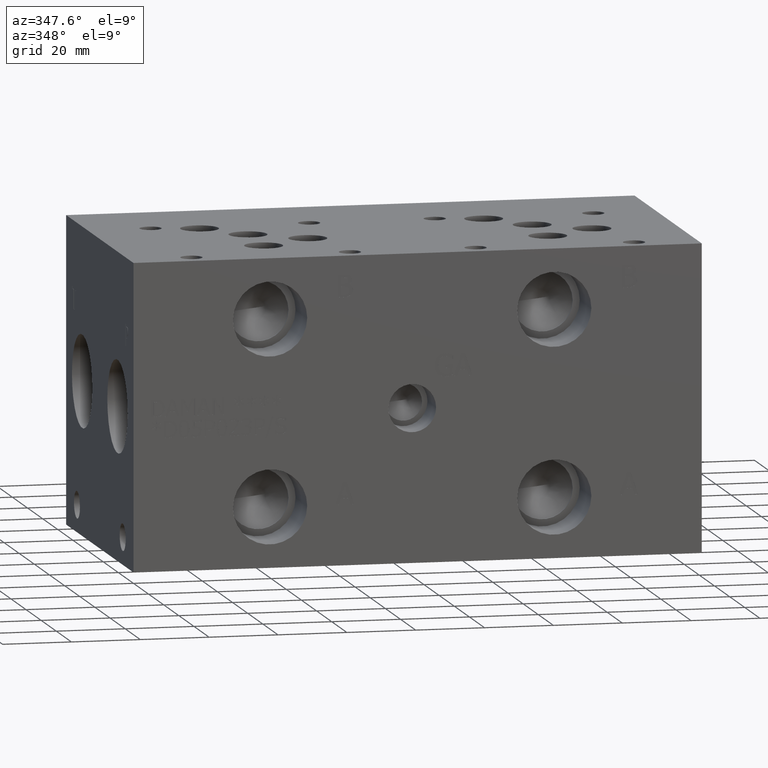
[diagram: clean part render]
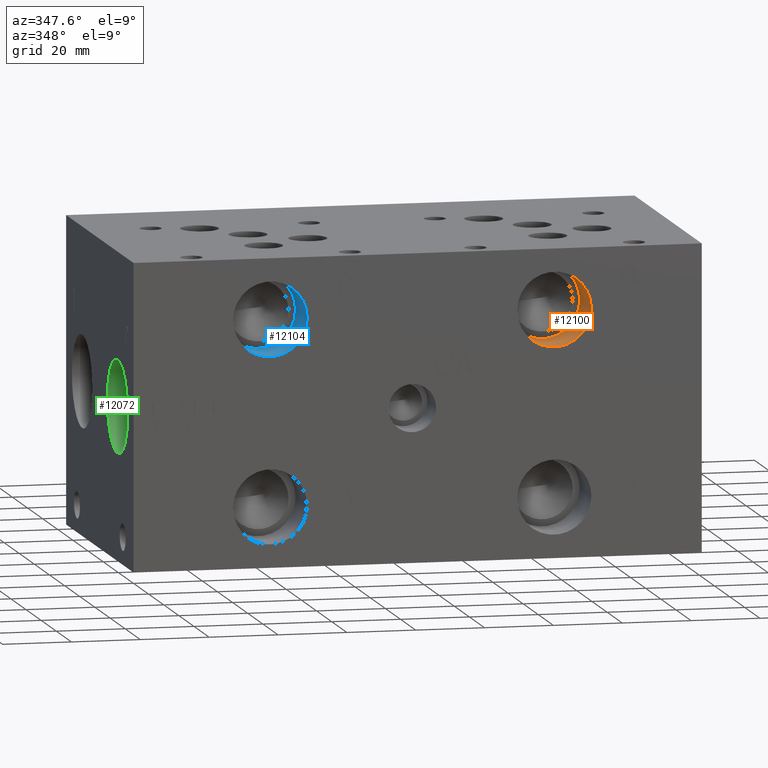
[diagram: same view with three faces highlighted in distinct colors, each labeled with its STEP entity id]
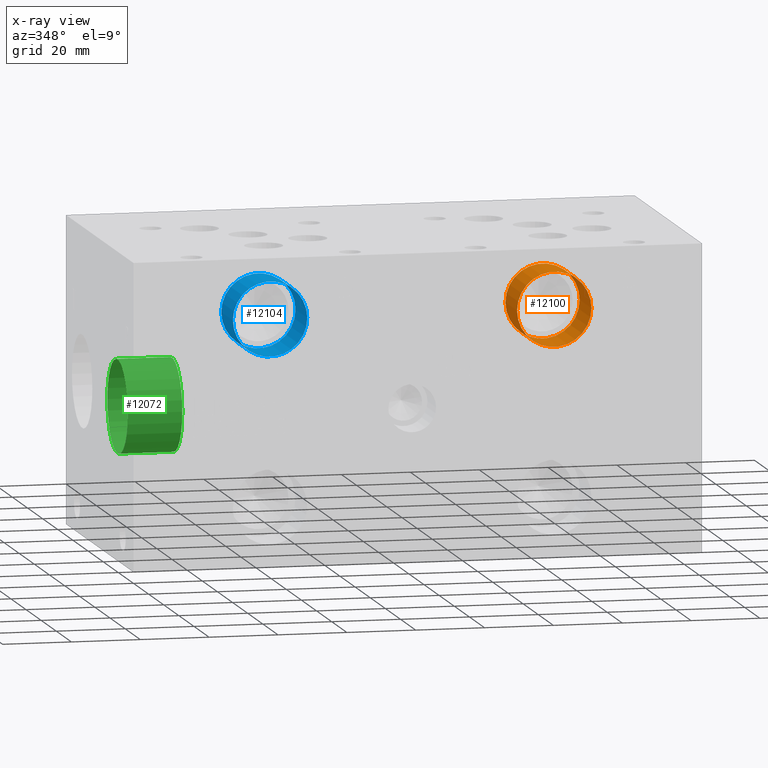
[diagram: x-ray of the same camera — body ghosted, the three highlighted faces saturated]
A machine part, auxiliary view with three faces highlighted in distinct colors.
The next image is the same camera in x-ray (body ghosted, the three faces saturated) — at least one of them is partly hidden behind the body in this view.
Their STEP definitions:

[orange] entity #12100 — the highlighted cylindrical surface (bore or boss wall) has radius 10.795 mm, axis along (0, -1, 0).
#70=CYLINDRICAL_SURFACE('',#12663,10.795);
#108=CIRCLE('',#12209,10.795);
#109=CIRCLE('',#12210,10.795);
#199=CIRCLE('',#12660,10.795);
#200=CIRCLE('',#12661,10.795);
#1479=FACE_OUTER_BOUND('',#2174,.T.);
#2174=EDGE_LOOP('',(#10341,#10342,#10343,#10344,#10345,#10346));
#3342=LINE('',#20621,#4467);
#4467=VECTOR('',#14872,10.795);
#4730=VERTEX_POINT('',#15965);
#4731=VERTEX_POINT('',#15966);
#5550=VERTEX_POINT('',#20614);
#5551=VERTEX_POINT('',#20615);
#5917=EDGE_CURVE('',#4730,#4731,#108,.T.);
#5918=EDGE_CURVE('',#4731,#4730,#109,.T.);
#7190=EDGE_CURVE('',#5550,#5551,#199,.T.);
#7191=EDGE_CURVE('',#5551,#5550,#200,.T.);
#7193=EDGE_CURVE('',#4731,#5551,#3342,.T.);
#10341=ORIENTED_EDGE('',*,*,#5917,.F.);
#10342=ORIENTED_EDGE('',*,*,#5918,.F.);
#10343=ORIENTED_EDGE('',*,*,#7193,.T.);
#10344=ORIENTED_EDGE('',*,*,#7190,.F.);
#10345=ORIENTED_EDGE('',*,*,#7191,.F.);
#10346=ORIENTED_EDGE('',*,*,#7193,.F.);
#12100=ADVANCED_FACE('',(#1479),#70,.F.);
#12209=AXIS2_PLACEMENT_3D('',#15967,#13088,#13089);
#12210=AXIS2_PLACEMENT_3D('',#15968,#13090,#13091);
#12660=AXIS2_PLACEMENT_3D('',#20616,#14864,#14865);
#12661=AXIS2_PLACEMENT_3D('',#20617,#14866,#14867);
#12663=AXIS2_PLACEMENT_3D('',#20620,#14870,#14871);
#13088=DIRECTION('center_axis',(0.,1.,0.));
#13089=DIRECTION('ref_axis',(1.,0.,0.));
#13090=DIRECTION('center_axis',(0.,1.,0.));
#13091=DIRECTION('ref_axis',(1.,0.,0.));
#14864=DIRECTION('center_axis',(0.,-1.,0.));
#14865=DIRECTION('ref_axis',(1.,0.,0.));
#14866=DIRECTION('center_axis',(0.,-1.,0.));
#14867=DIRECTION('ref_axis',(1.,0.,0.));
#14870=DIRECTION('center_axis',(0.,-1.,0.));
#14871=DIRECTION('ref_axis',(1.,0.,0.));
#14872=DIRECTION('',(0.,1.,0.));
#15965=CARTESIAN_POINT('',(133.0198,0.,71.4248));
#15966=CARTESIAN_POINT('',(111.4298,0.,71.4248));
#15967=CARTESIAN_POINT('Origin',(122.2248,0.,71.4248));
#15968=CARTESIAN_POINT('Origin',(122.2248,0.,71.4248));
#20614=CARTESIAN_POINT('',(133.0198,15.367,71.4248));
#20615=CARTESIAN_POINT('',(111.4298,15.367,71.4248));
#20616=CARTESIAN_POINT('Origin',(122.2248,15.367,71.4248));
#20617=CARTESIAN_POINT('Origin',(122.2248,15.367,71.4248));
#20620=CARTESIAN_POINT('Origin',(122.2248,7.6835,71.4248));
#20621=CARTESIAN_POINT('',(111.4298,7.6835,71.4248));

[blue] entity #12104 — the highlighted cylindrical surface (bore or boss wall) has radius 10.795 mm, axis along (0, -1, 0).
#72=CYLINDRICAL_SURFACE('',#12672,10.795);
#106=CIRCLE('',#12207,10.795);
#107=CIRCLE('',#12208,10.795);
#204=CIRCLE('',#12669,10.795);
#205=CIRCLE('',#12670,10.795);
#1483=FACE_OUTER_BOUND('',#2179,.T.);
#2179=EDGE_LOOP('',(#10359,#10360,#10361,#10362,#10363,#10364));
#3345=LINE('',#20639,#4470);
#4470=VECTOR('',#14893,10.795);
#4728=VERTEX_POINT('',#15961);
#4729=VERTEX_POINT('',#15962);
#5556=VERTEX_POINT('',#20632);
#5557=VERTEX_POINT('',#20633);
#5915=EDGE_CURVE('',#4728,#4729,#106,.T.);
#5916=EDGE_CURVE('',#4729,#4728,#107,.T.);
#7198=EDGE_CURVE('',#5556,#5557,#204,.T.);
#7199=EDGE_CURVE('',#5557,#5556,#205,.T.);
#7201=EDGE_CURVE('',#4729,#5557,#3345,.T.);
#10359=ORIENTED_EDGE('',*,*,#5915,.F.);
#10360=ORIENTED_EDGE('',*,*,#5916,.F.);
#10361=ORIENTED_EDGE('',*,*,#7201,.T.);
#10362=ORIENTED_EDGE('',*,*,#7198,.F.);
#10363=ORIENTED_EDGE('',*,*,#7199,.F.);
#10364=ORIENTED_EDGE('',*,*,#7201,.F.);
#12104=ADVANCED_FACE('',(#1483),#72,.F.);
#12207=AXIS2_PLACEMENT_3D('',#15963,#13084,#13085);
#12208=AXIS2_PLACEMENT_3D('',#15964,#13086,#13087);
#12669=AXIS2_PLACEMENT_3D('',#20634,#14885,#14886);
#12670=AXIS2_PLACEMENT_3D('',#20635,#14887,#14888);
#12672=AXIS2_PLACEMENT_3D('',#20638,#14891,#14892);
#13084=DIRECTION('center_axis',(0.,1.,0.));
#13085=DIRECTION('ref_axis',(1.,0.,0.));
#13086=DIRECTION('center_axis',(0.,1.,0.));
#13087=DIRECTION('ref_axis',(1.,0.,0.));
#14885=DIRECTION('center_axis',(0.,-1.,0.));
#14886=DIRECTION('ref_axis',(1.,0.,0.));
#14887=DIRECTION('center_axis',(0.,-1.,0.));
#14888=DIRECTION('ref_axis',(1.,0.,0.));
#14891=DIRECTION('center_axis',(0.,-1.,0.));
#14892=DIRECTION('ref_axis',(1.,0.,0.));
#14893=DIRECTION('',(0.,1.,0.));
#15961=CARTESIAN_POINT('',(50.4698,0.,71.4248));
#15962=CARTESIAN_POINT('',(28.8798,0.,71.4248));
#15963=CARTESIAN_POINT('Origin',(39.6748,0.,71.4248));
#15964=CARTESIAN_POINT('Origin',(39.6748,0.,71.4248));
#20632=CARTESIAN_POINT('',(50.4698,15.367,71.4248));
#20633=CARTESIAN_POINT('',(28.8798,15.367,71.4248));
#20634=CARTESIAN_POINT('Origin',(39.6748,15.367,71.4248));
#20635=CARTESIAN_POINT('Origin',(39.6748,15.367,71.4248));
#20638=CARTESIAN_POINT('Origin',(39.6748,7.6835,71.4248));
#20639=CARTESIAN_POINT('',(28.8798,7.6835,71.4248));

[green] entity #12072 — the highlighted cylindrical surface (bore or boss wall) has radius 13.462 mm, axis along (-1, 0, 0).
#56=CYLINDRICAL_SURFACE('',#12600,13.462);
#116=CIRCLE('',#12473,13.462);
#117=CIRCLE('',#12474,13.462);
#164=CIRCLE('',#12597,13.462);
#165=CIRCLE('',#12598,13.462);
#1451=FACE_OUTER_BOUND('',#2139,.T.);
#2139=EDGE_LOOP('',(#10215,#10216,#10217,#10218,#10219,#10220));
#3321=LINE('',#20495,#4446);
#4446=VECTOR('',#14725,13.462);
#5338=VERTEX_POINT('',#19702);
#5339=VERTEX_POINT('',#19703);
#5508=VERTEX_POINT('',#20488);
#5509=VERTEX_POINT('',#20489);
#6884=EDGE_CURVE('',#5338,#5339,#116,.T.);
#6885=EDGE_CURVE('',#5339,#5338,#117,.T.);
#7134=EDGE_CURVE('',#5508,#5509,#164,.T.);
#7135=EDGE_CURVE('',#5509,#5508,#165,.T.);
#7137=EDGE_CURVE('',#5339,#5509,#3321,.T.);
#10215=ORIENTED_EDGE('',*,*,#6884,.F.);
#10216=ORIENTED_EDGE('',*,*,#6885,.F.);
#10217=ORIENTED_EDGE('',*,*,#7137,.T.);
#10218=ORIENTED_EDGE('',*,*,#7134,.F.);
#10219=ORIENTED_EDGE('',*,*,#7135,.F.);
#10220=ORIENTED_EDGE('',*,*,#7137,.F.);
#12072=ADVANCED_FACE('',(#1451),#56,.F.);
#12473=AXIS2_PLACEMENT_3D('',#19704,#14305,#14306);
#12474=AXIS2_PLACEMENT_3D('',#19705,#14307,#14308);
#12597=AXIS2_PLACEMENT_3D('',#20490,#14717,#14718);
#12598=AXIS2_PLACEMENT_3D('',#20491,#14719,#14720);
#12600=AXIS2_PLACEMENT_3D('',#20494,#14723,#14724);
#14305=DIRECTION('center_axis',(1.,0.,0.));
#14306=DIRECTION('ref_axis',(0.,1.,0.));
#14307=DIRECTION('center_axis',(1.,0.,0.));
#14308=DIRECTION('ref_axis',(0.,1.,0.));
#14717=DIRECTION('center_axis',(-1.,0.,0.));
#14718=DIRECTION('ref_axis',(0.,1.,0.));
#14719=DIRECTION('center_axis',(-1.,0.,0.));
#14720=DIRECTION('ref_axis',(0.,1.,0.));
#14723=DIRECTION('center_axis',(-1.,0.,0.));
#14724=DIRECTION('ref_axis',(0.,1.,0.));
#14725=DIRECTION('',(1.,0.,0.));
#19702=CARTESIAN_POINT('',(0.,34.544,44.45));
#19703=CARTESIAN_POINT('',(1.11022302462516E-15,7.62,44.45));
#19704=CARTESIAN_POINT('Origin',(0.,21.082,44.45));
#19705=CARTESIAN_POINT('Origin',(0.,21.082,44.45));
#20488=CARTESIAN_POINT('',(15.8496,34.544,44.45));
#20489=CARTESIAN_POINT('',(15.8496,7.62,44.45));
#20490=CARTESIAN_POINT('Origin',(15.8496,21.082,44.45));
#20491=CARTESIAN_POINT('Origin',(15.8496,21.082,44.45));
#20494=CARTESIAN_POINT('Origin',(7.9248,21.082,44.45));
#20495=CARTESIAN_POINT('',(7.9248,7.62,44.45));